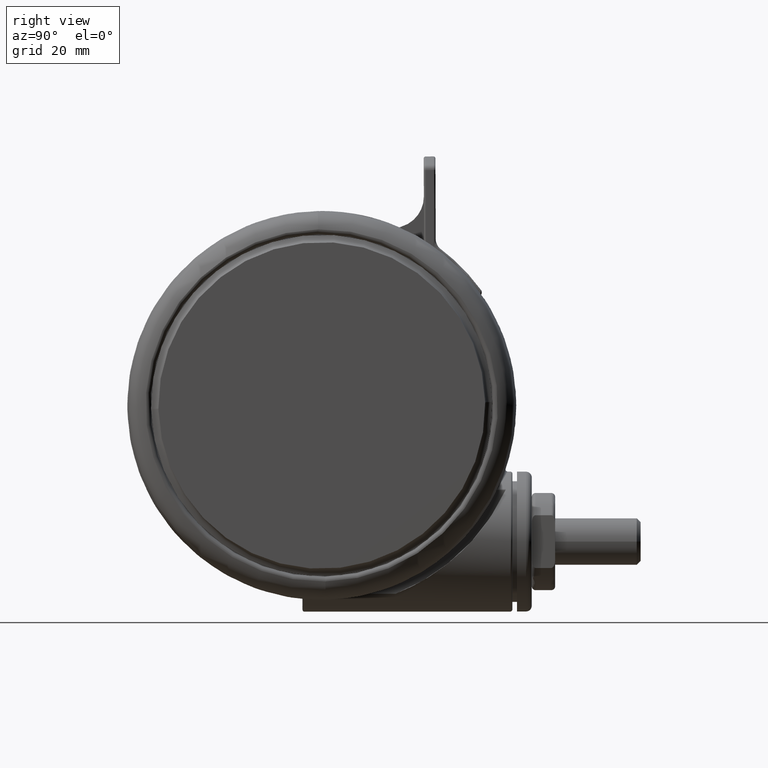
[diagram: clean part render]
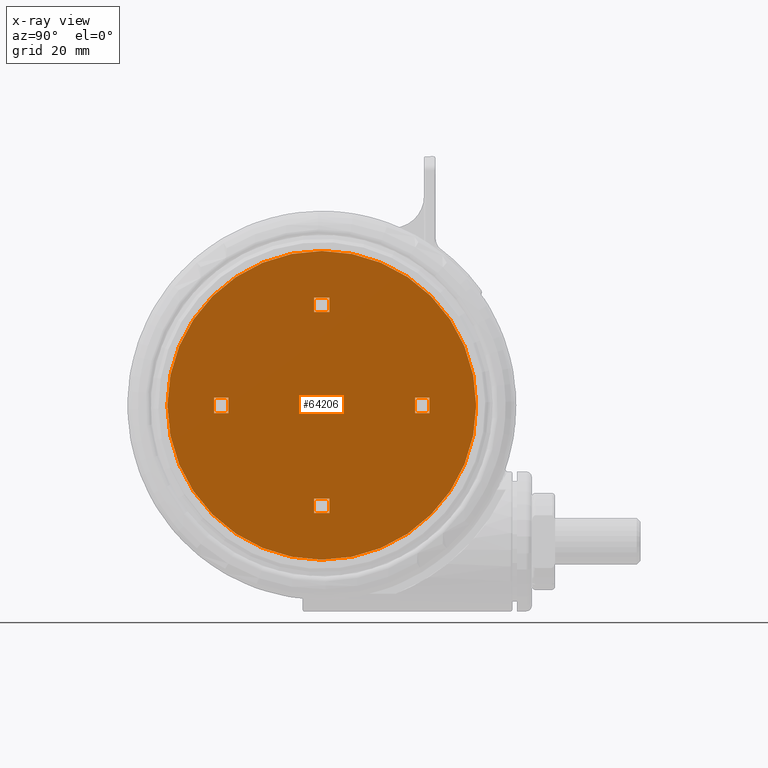
[diagram: x-ray — body ghosted, one internal face saturated and labeled with its STEP entity id]
A machine part, right view, then the same camera in x-ray: the body is ghosted and one INTERNAL B-rep face — a face not visible from any outside direction — is saturated and labeled: STEP entity #64206.
In plain terms, the highlighted planar face has unit normal (-1, 0, 0).
Its self-contained STEP definition (entity closure, byte-faithful):
#146 = VECTOR ( 'NONE', #37461, 1000.000000000000100 ) ;
#465 = VERTEX_POINT ( 'NONE', #22567 ) ;
#1707 = DIRECTION ( 'NONE',  ( 0.9997947190500675600, -0.02026128721469507000, -0.0000000000000000000 ) ) ;
#1960 = EDGE_LOOP ( 'NONE', ( #30443, #36415 ) ) ;
#2158 = LINE ( 'NONE', #50794, #39757 ) ;
#2461 = VERTEX_POINT ( 'NONE', #25482 ) ;
#3097 = VECTOR ( 'NONE', #28465, 1000.000000000000100 ) ;
#3659 = VECTOR ( 'NONE', #81448, 1000.000000000000100 ) ;
#4112 = EDGE_CURVE ( 'NONE', #465, #79089, #44871, .T. ) ;
#4163 = LINE ( 'NONE', #12291, #146 ) ;
#5420 = EDGE_CURVE ( 'NONE', #79089, #39592, #4163, .T. ) ;
#5807 = LINE ( 'NONE', #40737, #7790 ) ;
#5877 = CARTESIAN_POINT ( 'NONE',  ( -0.04052252537399453300, -1.999584596324641500, -63.39999999999985600 ) ) ;
#7002 = VERTEX_POINT ( 'NONE', #77782 ) ;
#7519 = DIRECTION ( 'NONE',  ( -0.9997947190500677800, 0.02026128721468460300, 1.807003620809174600E-016 ) ) ;
#7790 = VECTOR ( 'NONE', #78522, 1000.000000000000100 ) ;
#8151 = CARTESIAN_POINT ( 'NONE',  ( -2.560827044891814900, -27.65378630148200800, -63.39999999999985600 ) ) ;
#9390 = ORIENTED_EDGE ( 'NONE', *, *, #45943, .F. ) ;
#9505 = DIRECTION ( 'NONE',  ( 0.02026128721468460300, 0.9997947190500677800, 0.0000000000000000000 ) ) ;
#9511 = EDGE_CURVE ( 'NONE', #10892, #2461, #50044, .T. ) ;
#9826 = VECTOR ( 'NONE', #18034, 1000.000000000000100 ) ;
#10207 = VERTEX_POINT ( 'NONE', #47100 ) ;
#10569 = VERTEX_POINT ( 'NONE', #65038 ) ;
#10892 = VERTEX_POINT ( 'NONE', #49219 ) ;
#11316 = VECTOR ( 'NONE', #9505, 1000.000000000000100 ) ;
#11403 = VERTEX_POINT ( 'NONE', #27073 ) ;
#12291 = CARTESIAN_POINT ( 'NONE',  ( 0.04052262348474322500, 1.999594279875630300, -63.39999999999985600 ) ) ;
#13007 = DIRECTION ( 'NONE',  ( -0.02026128721468460300, -0.9997947190500677800, 0.0000000000000000000 ) ) ;
#14010 = VECTOR ( 'NONE', #23759, 1000.000000000000100 ) ;
#14363 = CARTESIAN_POINT ( 'NONE',  ( 4.905537434596318700E-008, 4.841775494424105400E-006, -63.39999999999985600 ) ) ;
#14478 = DIRECTION ( 'NONE',  ( -0.02026128721468460300, -0.9997947190500677800, 0.0000000000000000000 ) ) ;
#15158 = EDGE_LOOP ( 'NONE', ( #32209, #39615, #28449, #55071 ) ) ;
#15281 = EDGE_CURVE ( 'NONE', #28226, #50956, #71421, .T. ) ;
#15959 = EDGE_LOOP ( 'NONE', ( #32983, #57265, #70574, #9390 ) ) ;
#15979 = EDGE_CURVE ( 'NONE', #49828, #28226, #19941, .T. ) ;
#18034 = DIRECTION ( 'NONE',  ( -0.9997947190500676700, 0.02026128721468809000, -0.0000000000000000000 ) ) ;
#18657 = EDGE_CURVE ( 'NONE', #2461, #10892, #72012, .T. ) ;
#18866 = ORIENTED_EDGE ( 'NONE', *, *, #78334, .T. ) ;
#19070 = VECTOR ( 'NONE', #1707, 1000.000000000000100 ) ;
#19249 = DIRECTION ( 'NONE',  ( 0.9997947190500676700, -0.02026128721468809000, 0.0000000000000000000 ) ) ;
#19873 = ORIENTED_EDGE ( 'NONE', *, *, #73899, .F. ) ;
#19941 = LINE ( 'NONE', #66272, #3097 ) ;
#20764 = DIRECTION ( 'NONE',  ( -0.02026128721468459900, -0.9997947190500677800, 0.0000000000000000000 ) ) ;
#20957 = CARTESIAN_POINT ( 'NONE',  ( 1.438351831308456700, -27.73483145034074900, -63.39999999999985600 ) ) ;
#21274 = AXIS2_PLACEMENT_3D ( 'NONE', #77390, #52289, #14478 ) ;
#22115 = CARTESIAN_POINT ( 'NONE',  ( 1.513318594002830000, -24.03559098985550000, -63.39999999999985600 ) ) ;
#22567 = CARTESIAN_POINT ( 'NONE',  ( -27.73483624306087600, -1.438346940477877900, -63.39999999999985600 ) ) ;
#22675 = CARTESIAN_POINT ( 'NONE',  ( 1.999589487155510000, -0.04051773265389605600, -63.39999999999985600 ) ) ;
#22760 = VERTEX_POINT ( 'NONE', #53495 ) ;
#23408 = LINE ( 'NONE', #38995, #54937 ) ;
#23499 = CARTESIAN_POINT ( 'NONE',  ( -1.513318495892246100, 24.03560067340649200, -63.39999999999985600 ) ) ;
#23759 = DIRECTION ( 'NONE',  ( -0.02026128721468460300, -0.9997947190500677800, -0.0000000000000000000 ) ) ;
#25303 = FACE_OUTER_BOUND ( 'NONE', #1960, .T. ) ;
#25482 = CARTESIAN_POINT ( 'NONE',  ( 0.8043731514783482000, 39.69185518806318700, -63.39999999999984200 ) ) ;
#26065 = LINE ( 'NONE', #65416, #74441 ) ;
#26286 = CARTESIAN_POINT ( 'NONE',  ( -2.485860282197441600, -23.95454584099676200, -63.39999999999985600 ) ) ;
#26610 = LINE ( 'NONE', #43108, #9826 ) ;
#27073 = CARTESIAN_POINT ( 'NONE',  ( 23.95455073182763400, -2.485855489477072100, -63.39999999999985600 ) ) ;
#27450 = CARTESIAN_POINT ( 'NONE',  ( -23.95455063371688500, 2.485865173028060800, -63.39999999999985600 ) ) ;
#27522 = VERTEX_POINT ( 'NONE', #49803 ) ;
#28120 = VERTEX_POINT ( 'NONE', #75650 ) ;
#28226 = VERTEX_POINT ( 'NONE', #26286 ) ;
#28449 = ORIENTED_EDGE ( 'NONE', *, *, #56510, .T. ) ;
#28465 = DIRECTION ( 'NONE',  ( 0.02026128721469507000, 0.9997947190500675600, 1.807003620809174600E-016 ) ) ;
#28571 = CARTESIAN_POINT ( 'NONE',  ( -27.69431366863150500, 0.5612424976222579700, -63.39999999999985600 ) ) ;
#29018 = DIRECTION ( 'NONE',  ( 0.02026128721469507000, 0.9997947190500675600, 1.807003620809174600E-016 ) ) ;
#29228 = CARTESIAN_POINT ( 'NONE',  ( 4.905537434596318700E-008, 4.841775494424105400E-006, -63.39999999999985600 ) ) ;
#30443 = ORIENTED_EDGE ( 'NONE', *, *, #9511, .T. ) ;
#30886 = LINE ( 'NONE', #61553, #14010 ) ;
#31586 = ORIENTED_EDGE ( 'NONE', *, *, #46794, .T. ) ;
#32209 = ORIENTED_EDGE ( 'NONE', *, *, #36839, .T. ) ;
#32407 = VERTEX_POINT ( 'NONE', #79262 ) ;
#32709 = VECTOR ( 'NONE', #45683, 1000.000000000000100 ) ;
#32983 = ORIENTED_EDGE ( 'NONE', *, *, #4112, .T. ) ;
#33275 = CARTESIAN_POINT ( 'NONE',  ( 1.513318594002830000, -24.03559098985550000, -63.39999999999985600 ) ) ;
#34130 = EDGE_LOOP ( 'NONE', ( #18866, #80467, #80514, #19873 ) ) ;
#35570 = DIRECTION ( 'NONE',  ( -0.02026128721468459900, -0.9997947190500677800, 0.0000000000000000000 ) ) ;
#36415 = ORIENTED_EDGE ( 'NONE', *, *, #18657, .T. ) ;
#36839 = EDGE_CURVE ( 'NONE', #7002, #22760, #80776, .T. ) ;
#37309 = LINE ( 'NONE', #5877, #3659 ) ;
#37461 = DIRECTION ( 'NONE',  ( 0.9997947190500677800, -0.02026128721468460300, 1.807003620809174600E-016 ) ) ;
#37746 = CARTESIAN_POINT ( 'NONE',  ( 1.999589487155510400, -0.04051773265388143600, -63.39999999999985600 ) ) ;
#37848 = VECTOR ( 'NONE', #75502, 1000.000000000000100 ) ;
#38995 = CARTESIAN_POINT ( 'NONE',  ( 0.04052262348474387800, 1.999594279875630300, -63.39999999999985600 ) ) ;
#39127 = AXIS2_PLACEMENT_3D ( 'NONE', #29228, #73332, #35570 ) ;
#39368 = CARTESIAN_POINT ( 'NONE',  ( 24.03559588068637600, 1.513323386723199900, -63.39999999999985600 ) ) ;
#39592 = VERTEX_POINT ( 'NONE', #27450 ) ;
#39615 = ORIENTED_EDGE ( 'NONE', *, *, #62087, .T. ) ;
#39757 = VECTOR ( 'NONE', #13007, 1000.000000000000100 ) ;
#40737 = CARTESIAN_POINT ( 'NONE',  ( -41.05292372831912900, -26.87372674371625800, -63.39999999999985600 ) ) ;
#42071 = FACE_BOUND ( 'NONE', #34130, .T. ) ;
#43108 = CARTESIAN_POINT ( 'NONE',  ( -1.513318495892246100, 24.03560067340649200, -63.39999999999985600 ) ) ;
#43767 = EDGE_CURVE ( 'NONE', #10569, #28120, #23408, .T. ) ;
#44545 = VERTEX_POINT ( 'NONE', #23499 ) ;
#44871 = LINE ( 'NONE', #28571, #11316 ) ;
#45683 = DIRECTION ( 'NONE',  ( 0.02026128721468460300, 0.9997947190500677800, -0.0000000000000000000 ) ) ;
#45932 = PLANE ( 'NONE',  #21274 ) ;
#45943 = EDGE_CURVE ( 'NONE', #465, #32407, #26065, .T. ) ;
#46794 = EDGE_CURVE ( 'NONE', #10569, #27522, #2158, .T. ) ;
#47100 = CARTESIAN_POINT ( 'NONE',  ( 2.485860380308025700, 23.95455552454775400, -63.39999999999985600 ) ) ;
#47233 = VECTOR ( 'NONE', #19249, 1000.000000000000100 ) ;
#49219 = CARTESIAN_POINT ( 'NONE',  ( -0.8043730533676043400, -39.69184550451220200, -63.39999999999984200 ) ) ;
#49293 = LINE ( 'NONE', #22675, #78882 ) ;
#49447 = LINE ( 'NONE', #39368, #32709 ) ;
#49803 = CARTESIAN_POINT ( 'NONE',  ( 27.65379119231288400, -2.560822252171405000, -63.39999999999985600 ) ) ;
#49828 = VERTEX_POINT ( 'NONE', #8151 ) ;
#50044 = CIRCLE ( 'NONE', #69747, 39.70000000000000300 ) ;
#50794 = CARTESIAN_POINT ( 'NONE',  ( 27.69431376674225500, -0.5612328140712691300, -63.39999999999985600 ) ) ;
#50956 = VERTEX_POINT ( 'NONE', #22115 ) ;
#51817 = VECTOR ( 'NONE', #66797, 1000.000000000000100 ) ;
#52289 = DIRECTION ( 'NONE',  ( -0.0000000000000000000, 0.0000000000000000000, -1.000000000000000000 ) ) ;
#52493 = ORIENTED_EDGE ( 'NONE', *, *, #43767, .F. ) ;
#53495 = CARTESIAN_POINT ( 'NONE',  ( 2.560827143002368800, 27.65379598503300300, -63.39999999999985600 ) ) ;
#53818 = LINE ( 'NONE', #60457, #51817 ) ;
#54937 = VECTOR ( 'NONE', #7519, 1000.000000000000100 ) ;
#55071 = ORIENTED_EDGE ( 'NONE', *, *, #76280, .F. ) ;
#56510 = EDGE_CURVE ( 'NONE', #10207, #44545, #26610, .T. ) ;
#57265 = ORIENTED_EDGE ( 'NONE', *, *, #5420, .T. ) ;
#58568 = DIRECTION ( 'NONE',  ( 0.0000000000000000000, -0.0000000000000000000, 1.000000000000000000 ) ) ;
#58897 = FACE_BOUND ( 'NONE', #59873, .T. ) ;
#59436 = EDGE_CURVE ( 'NONE', #27522, #11403, #37309, .T. ) ;
#59873 = EDGE_LOOP ( 'NONE', ( #31586, #73942, #71567, #52493 ) ) ;
#60457 = CARTESIAN_POINT ( 'NONE',  ( -1.999589389044761600, 0.04052741620487093600, -63.39999999999985600 ) ) ;
#61553 = CARTESIAN_POINT ( 'NONE',  ( -24.03559578257562600, -1.513313703172211000, -63.39999999999985600 ) ) ;
#62087 = EDGE_CURVE ( 'NONE', #22760, #10207, #71443, .T. ) ;
#62884 = FACE_BOUND ( 'NONE', #15959, .T. ) ;
#64206 = ADVANCED_FACE ( 'NONE', ( #42071, #58897, #75627, #62884, #25303 ), #45932, .F. ) ;
#65038 = CARTESIAN_POINT ( 'NONE',  ( 27.73483634117162600, 1.438356624028866800, -63.39999999999985600 ) ) ;
#65416 = CARTESIAN_POINT ( 'NONE',  ( -0.04052252537399518600, -1.999584596324641500, -63.39999999999985600 ) ) ;
#66272 = CARTESIAN_POINT ( 'NONE',  ( -1.999589389044761100, 0.04052741620488425200, -63.39999999999985600 ) ) ;
#66748 = DIRECTION ( 'NONE',  ( 0.9997947190500677800, -0.02026128721468460300, 1.807003620809174600E-016 ) ) ;
#66797 = DIRECTION ( 'NONE',  ( -0.02026128721468809000, -0.9997947190500676700, 1.807003620809174600E-016 ) ) ;
#67385 = EDGE_CURVE ( 'NONE', #11403, #28120, #49447, .T. ) ;
#69747 = AXIS2_PLACEMENT_3D ( 'NONE', #14363, #58568, #20764 ) ;
#69763 = CARTESIAN_POINT ( 'NONE',  ( -39.93044841662561600, 28.51490069165710400, -63.39999999999985600 ) ) ;
#70574 = ORIENTED_EDGE ( 'NONE', *, *, #71993, .T. ) ;
#71421 = LINE ( 'NONE', #33275, #19070 ) ;
#71443 = LINE ( 'NONE', #37746, #37848 ) ;
#71567 = ORIENTED_EDGE ( 'NONE', *, *, #67385, .T. ) ;
#71993 = EDGE_CURVE ( 'NONE', #39592, #32407, #30886, .T. ) ;
#72012 = CIRCLE ( 'NONE', #39127, 39.70000000000000300 ) ;
#73332 = DIRECTION ( 'NONE',  ( 0.0000000000000000000, -0.0000000000000000000, 1.000000000000000000 ) ) ;
#73460 = CARTESIAN_POINT ( 'NONE',  ( -27.65379109420213800, 2.560831935722394100, -63.39999999999985600 ) ) ;
#73899 = EDGE_CURVE ( 'NONE', #74212, #50956, #49293, .T. ) ;
#73942 = ORIENTED_EDGE ( 'NONE', *, *, #59436, .T. ) ;
#74212 = VERTEX_POINT ( 'NONE', #20957 ) ;
#74441 = VECTOR ( 'NONE', #66748, 1000.000000000000100 ) ;
#75502 = DIRECTION ( 'NONE',  ( -0.02026128721468809000, -0.9997947190500676700, 1.807003620809174600E-016 ) ) ;
#75627 = FACE_BOUND ( 'NONE', #15158, .T. ) ;
#75650 = CARTESIAN_POINT ( 'NONE',  ( 24.03559588068637600, 1.513323386723199900, -63.39999999999985600 ) ) ;
#76280 = EDGE_CURVE ( 'NONE', #7002, #44545, #53818, .T. ) ;
#77390 = CARTESIAN_POINT ( 'NONE',  ( -40.49168607247237600, 0.8205869739702208500, -63.39999999999985600 ) ) ;
#77782 = CARTESIAN_POINT ( 'NONE',  ( -1.438351733197903000, 27.73484113389174200, -63.39999999999985600 ) ) ;
#78334 = EDGE_CURVE ( 'NONE', #74212, #49828, #5807, .T. ) ;
#78522 = DIRECTION ( 'NONE',  ( -0.9997947190500675600, 0.02026128721469507000, 0.0000000000000000000 ) ) ;
#78882 = VECTOR ( 'NONE', #29018, 1000.000000000000100 ) ;
#79089 = VERTEX_POINT ( 'NONE', #73460 ) ;
#79262 = CARTESIAN_POINT ( 'NONE',  ( -24.03559578257562600, -1.513313703172211000, -63.39999999999985600 ) ) ;
#80467 = ORIENTED_EDGE ( 'NONE', *, *, #15979, .T. ) ;
#80514 = ORIENTED_EDGE ( 'NONE', *, *, #15281, .T. ) ;
#80776 = LINE ( 'NONE', #69763, #47233 ) ;
#81448 = DIRECTION ( 'NONE',  ( -0.9997947190500677800, 0.02026128721468460300, 1.807003620809174600E-016 ) ) ;